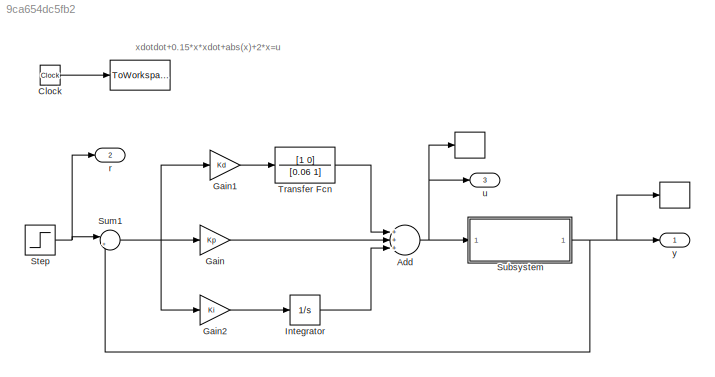
MODEL slx_9ca654dc5fb2
KIND model
BLOCK [ToWorkspace]  
  FixptAsFi = on
  MaxDataPoints = inf
  Ports = [1]
  SampleTime = -1
  Save2DSignal = 3-D array (concatenate along third dimension)
  VariableName = u
BLOCK [Sum] Add
  InputSameDT = off
  Inputs = +++
  OutDataTypeStr = Inherit: Inherit via internal rule
  Ports = [3, 1]
  SaturateOnIntegerOverflow = off
BLOCK [Clock] Clock
BLOCK [Gain] Gain
  Gain = Kp
  OutDataTypeStr = Inherit: Inherit via internal rule
  ParamDataTypeStr = Inherit: Inherit via internal rule
  SaturateOnIntegerOverflow = off
BLOCK [Gain] Gain1
  Gain = Kd
  OutDataTypeStr = Inherit: Inherit via internal rule
  ParamDataTypeStr = Inherit: Inherit via internal rule
  SaturateOnIntegerOverflow = off
BLOCK [Gain] Gain2
  Gain = Ki
  OutDataTypeStr = Inherit: Inherit via internal rule
  ParamDataTypeStr = Inherit: Inherit via internal rule
  SaturateOnIntegerOverflow = off
BLOCK [Integrator] Integrator
  Ports = [1, 1]
BLOCK [Step] Step
  SampleTime = 0
  Time = 0
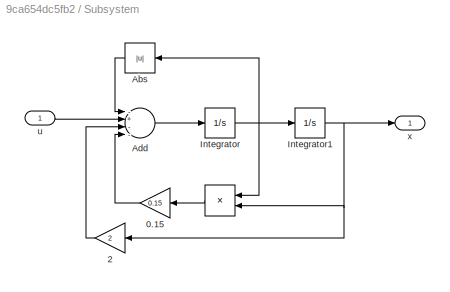
BLOCK [SubSystem] Subsystem
  Ports = [1, 1]
  RequestExecContextInheritance = off
BLOCK [Product] Subsystem/ 
  InputSameDT = off
  OutDataTypeStr = Inherit: Inherit via internal rule
  Ports = [2, 1]
  RndMeth = Floor
  SaturateOnIntegerOverflow = off
BLOCK [Gain] Subsystem/0.15
  Gain = 0.15
  OutDataTypeStr = Inherit: Inherit via internal rule
  ParamDataTypeStr = Inherit: Inherit via internal rule
  SaturateOnIntegerOverflow = off
BLOCK [Gain] Subsystem/2
  Gain = 2
  OutDataTypeStr = Inherit: Inherit via internal rule
  ParamDataTypeStr = Inherit: Inherit via internal rule
  SaturateOnIntegerOverflow = off
BLOCK [Abs] Subsystem/Abs
  SaturateOnIntegerOverflow = off
BLOCK [Sum] Subsystem/Add
  InputSameDT = off
  Inputs = -+--
  OutDataTypeStr = Inherit: Inherit via internal rule
  Ports = [4, 1]
  SaturateOnIntegerOverflow = off
BLOCK [Integrator] Subsystem/Integrator
  Ports = [1, 1]
BLOCK [Integrator] Subsystem/Integrator1
  Ports = [1, 1]
BLOCK [Inport] Subsystem/u
  IconDisplay = Port number
BLOCK [Outport] Subsystem/x
  IconDisplay = Port number
BLOCK [Sum] Sum1
  IconShape = round
  InputSameDT = off
  Inputs = |+-
  OutDataTypeStr = Inherit: Inherit via internal rule
  Ports = [2, 1]
  SaturateOnIntegerOverflow = off
BLOCK [TransferFcn] Transfer Fcn
  Denominator = [0.06 1]
  Numerator = [1 0]
BLOCK [Outport] r
  IconDisplay = Port number
  Port = 2
BLOCK [Outport] u
  IconDisplay = Port number
  Port = 3
BLOCK [Outport] y
  IconDisplay = Port number
ANNOTATION (root): xdotdot+0.15*x*xdot+abs(x)+2*x=u
NET Add:1 ->  :1, Subsystem:1, u:1
LINE Clock:1 ->  :1
LINE Gain1:1 -> Transfer Fcn:1
LINE Gain2:1 -> Integrator:1
LINE Gain:1 -> Add:2
LINE Integrator:1 -> Add:3
NET Step:1 -> Sum1:1, r:1
LINE Subsystem/ :1 -> Subsystem/0.15:1
LINE Subsystem/0.15:1 -> Subsystem/Add:4
LINE Subsystem/2:1 -> Subsystem/Add:3
LINE Subsystem/Abs:1 -> Subsystem/Add:1
LINE Subsystem/Add:1 -> Subsystem/Integrator:1
NET Subsystem/Integrator1:1 -> Subsystem/ :2, Subsystem/2:1, Subsystem/x:1
NET Subsystem/Integrator:1 -> Subsystem/ :1, Subsystem/Abs:1, Subsystem/Integrator1:1
LINE Subsystem/u:1 -> Subsystem/Add:2
NET Subsystem:1 ->  :1, Sum1:2, y:1
NET Sum1:1 -> Gain1:1, Gain2:1, Gain:1
LINE Transfer Fcn:1 -> Add:1
note: NET lines group one-source signal fan-out (src -> all destinations, sorted); 1:1 wires keep LINE
